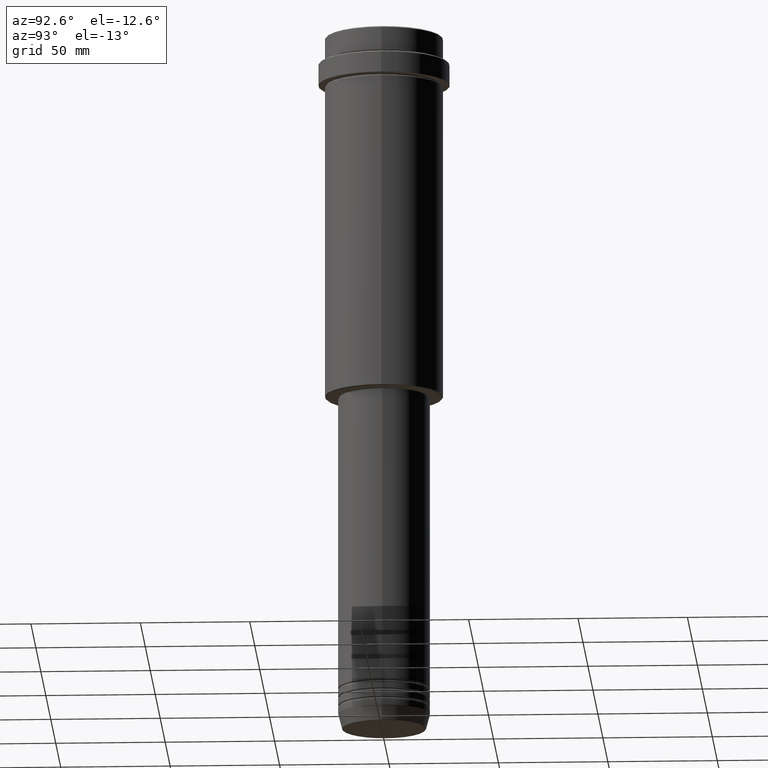
[diagram: clean part render]
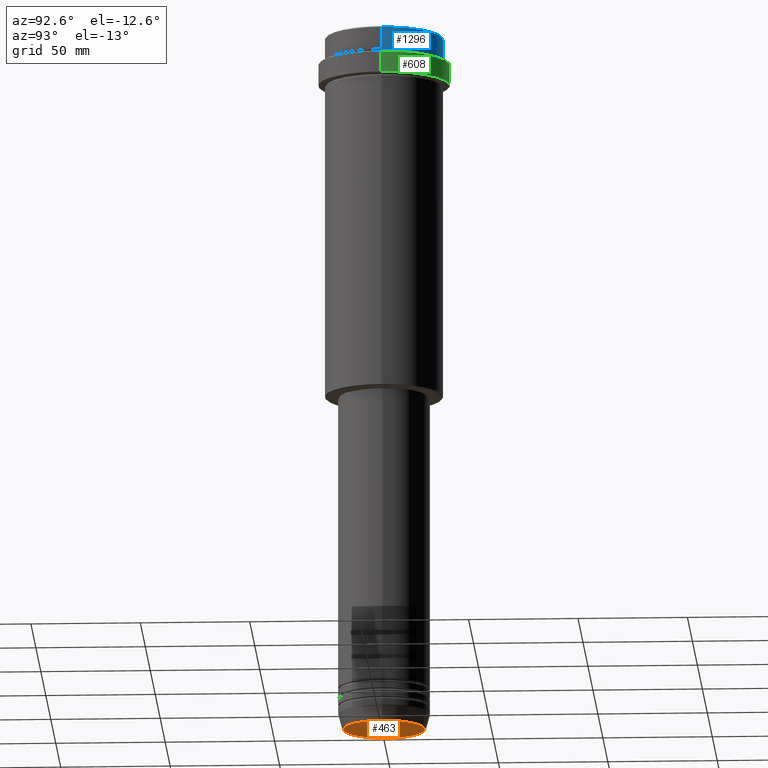
[diagram: same view with three faces highlighted in distinct colors, each labeled with its STEP entity id]
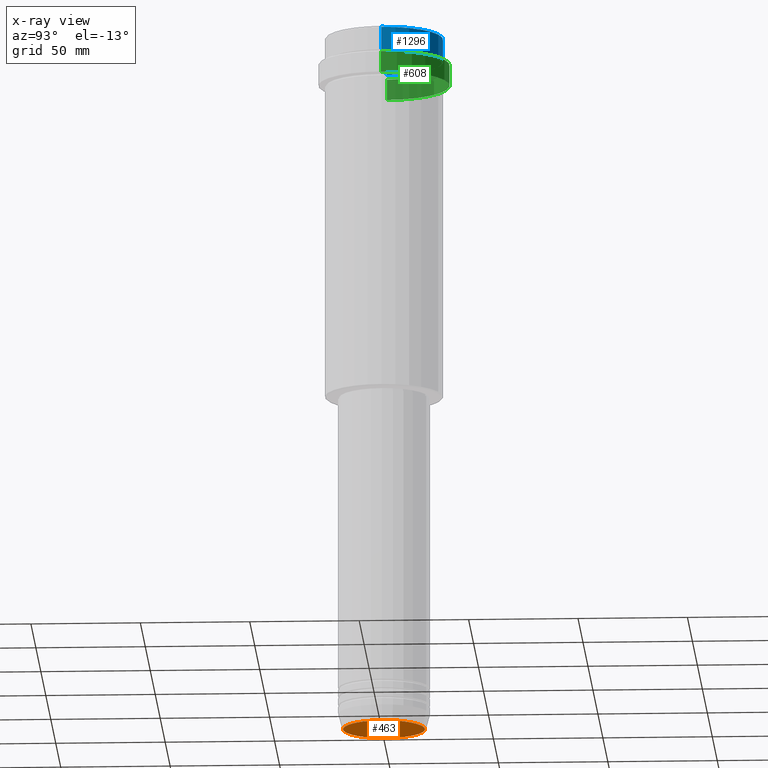
[diagram: x-ray of the same camera — body ghosted, the three highlighted faces saturated]
A machine part, auxiliary view with three faces highlighted in distinct colors.
The next image is the same camera in x-ray (body ghosted, the three faces saturated) — at least one of them is partly hidden behind the body in this view.
Their STEP definitions:

[orange] entity #463 — the highlighted planar face has unit normal (0, -0, 1).
#75 = CARTESIAN_POINT ( 'NONE',  ( 0.000000000000000000, 0.000000000000000000, -323.0000000000000000 ) ) ;
#242 = DIRECTION ( 'NONE',  ( 1.000000000000000000, 0.000000000000000000, 0.000000000000000000 ) ) ;
#283 = ORIENTED_EDGE ( 'NONE', *, *, #847, .T. ) ;
#311 = CARTESIAN_POINT ( 'NONE',  ( 0.000000000000000000, 0.000000000000000000, -323.0000000000000000 ) ) ;
#362 = ORIENTED_EDGE ( 'NONE', *, *, #687, .T. ) ;
#409 = CIRCLE ( 'NONE', #957, 18.74069215899265473 ) ;
#423 = CARTESIAN_POINT ( 'NONE',  ( 18.74069215899265473, 0.000000000000000000, -323.0000000000000000 ) ) ;
#463 = ADVANCED_FACE ( 'NONE', ( #1071 ), #748, .F. ) ;
#465 = DIRECTION ( 'NONE',  ( 0.000000000000000000, -0.000000000000000000, 1.000000000000000000 ) ) ;
#594 = CARTESIAN_POINT ( 'NONE',  ( -18.74069215899265473, 2.324645815916091924E-15, -323.0000000000000000 ) ) ;
#678 = CIRCLE ( 'NONE', #755, 18.74069215899265473 ) ;
#687 = EDGE_CURVE ( 'NONE', #997, #1125, #409, .T. ) ;
#740 = DIRECTION ( 'NONE',  ( 1.000000000000000000, 0.000000000000000000, 0.000000000000000000 ) ) ;
#748 = PLANE ( 'NONE',  #1161 ) ;
#755 = AXIS2_PLACEMENT_3D ( 'NONE', #1256, #1263, #740 ) ;
#847 = EDGE_CURVE ( 'NONE', #1125, #997, #678, .T. ) ;
#911 = EDGE_LOOP ( 'NONE', ( #362, #283 ) ) ;
#957 = AXIS2_PLACEMENT_3D ( 'NONE', #75, #1144, #1348 ) ;
#997 = VERTEX_POINT ( 'NONE', #423 ) ;
#1071 = FACE_OUTER_BOUND ( 'NONE', #911, .T. ) ;
#1125 = VERTEX_POINT ( 'NONE', #594 ) ;
#1144 = DIRECTION ( 'NONE',  ( 0.000000000000000000, 0.000000000000000000, -1.000000000000000000 ) ) ;
#1161 = AXIS2_PLACEMENT_3D ( 'NONE', #311, #465, #242 ) ;
#1256 = CARTESIAN_POINT ( 'NONE',  ( 0.000000000000000000, 0.000000000000000000, -323.0000000000000000 ) ) ;
#1263 = DIRECTION ( 'NONE',  ( 0.000000000000000000, 0.000000000000000000, -1.000000000000000000 ) ) ;
#1348 = DIRECTION ( 'NONE',  ( 1.000000000000000000, 0.000000000000000000, 0.000000000000000000 ) ) ;

[blue] entity #1296 — the highlighted cylindrical surface (partial cylindrical patch) has radius 27 mm, axis along (-0, -0, 1).
#11 = AXIS2_PLACEMENT_3D ( 'NONE', #1087, #1188, #1304 ) ;
#29 = CYLINDRICAL_SURFACE ( 'NONE', #837, 26.99999999999999645 ) ;
#56 = CARTESIAN_POINT ( 'NONE',  ( 0.000000000000000000, 0.000000000000000000, -0.5000000000000038858 ) ) ;
#130 = CIRCLE ( 'NONE', #239, 26.99999999999999645 ) ;
#148 = DIRECTION ( 'NONE',  ( 1.000000000000000000, 0.000000000000000000, 0.000000000000000000 ) ) ;
#233 = CARTESIAN_POINT ( 'NONE',  ( -26.99999999999999645, 3.306546357697853339E-15, -11.00000000000000178 ) ) ;
#239 = AXIS2_PLACEMENT_3D ( 'NONE', #56, #735, #494 ) ;
#246 = VERTEX_POINT ( 'NONE', #293 ) ;
#249 = FACE_OUTER_BOUND ( 'NONE', #1113, .T. ) ;
#260 = EDGE_CURVE ( 'NONE', #843, #816, #342, .T. ) ;
#293 = CARTESIAN_POINT ( 'NONE',  ( 26.99999999999999645, 0.000000000000000000, -11.00000000000000178 ) ) ;
#339 = EDGE_CURVE ( 'NONE', #246, #405, #978, .T. ) ;
#341 = EDGE_CURVE ( 'NONE', #246, #843, #928, .T. ) ;
#342 = LINE ( 'NONE', #451, #407 ) ;
#405 = VERTEX_POINT ( 'NONE', #818 ) ;
#407 = VECTOR ( 'NONE', #1218, 1000.000000000000000 ) ;
#427 = CARTESIAN_POINT ( 'NONE',  ( 26.99999999999999645, 0.000000000000000000, 0.000000000000000000 ) ) ;
#441 = ORIENTED_EDGE ( 'NONE', *, *, #1084, .T. ) ;
#451 = CARTESIAN_POINT ( 'NONE',  ( -26.99999999999999645, 3.306546357697853339E-15, 0.000000000000000000 ) ) ;
#494 = DIRECTION ( 'NONE',  ( 1.000000000000000000, 0.000000000000000000, 0.000000000000000000 ) ) ;
#589 = ORIENTED_EDGE ( 'NONE', *, *, #339, .F. ) ;
#735 = DIRECTION ( 'NONE',  ( 0.000000000000000000, 0.000000000000000000, -1.000000000000000000 ) ) ;
#816 = VERTEX_POINT ( 'NONE', #1122 ) ;
#818 = CARTESIAN_POINT ( 'NONE',  ( 26.99999999999999645, 0.000000000000000000, -0.5000000000000038858 ) ) ;
#837 = AXIS2_PLACEMENT_3D ( 'NONE', #1127, #1251, #148 ) ;
#843 = VERTEX_POINT ( 'NONE', #233 ) ;
#867 = DIRECTION ( 'NONE',  ( -0.000000000000000000, -0.000000000000000000, 1.000000000000000000 ) ) ;
#928 = CIRCLE ( 'NONE', #11, 26.99999999999999645 ) ;
#978 = LINE ( 'NONE', #427, #1383 ) ;
#1036 = ORIENTED_EDGE ( 'NONE', *, *, #260, .T. ) ;
#1084 = EDGE_CURVE ( 'NONE', #816, #405, #130, .T. ) ;
#1087 = CARTESIAN_POINT ( 'NONE',  ( 0.000000000000000000, 0.000000000000000000, -11.00000000000000178 ) ) ;
#1113 = EDGE_LOOP ( 'NONE', ( #1148, #1036, #441, #589 ) ) ;
#1122 = CARTESIAN_POINT ( 'NONE',  ( -26.99999999999999645, 3.306546357697853339E-15, -0.5000000000000038858 ) ) ;
#1127 = CARTESIAN_POINT ( 'NONE',  ( 0.000000000000000000, 0.000000000000000000, 0.000000000000000000 ) ) ;
#1148 = ORIENTED_EDGE ( 'NONE', *, *, #341, .T. ) ;
#1188 = DIRECTION ( 'NONE',  ( -0.000000000000000000, -0.000000000000000000, 1.000000000000000000 ) ) ;
#1218 = DIRECTION ( 'NONE',  ( -0.000000000000000000, -0.000000000000000000, 1.000000000000000000 ) ) ;
#1251 = DIRECTION ( 'NONE',  ( -0.000000000000000000, -0.000000000000000000, 1.000000000000000000 ) ) ;
#1296 = ADVANCED_FACE ( 'NONE', ( #249 ), #29, .T. ) ;
#1304 = DIRECTION ( 'NONE',  ( 1.000000000000000000, 0.000000000000000000, 0.000000000000000000 ) ) ;
#1383 = VECTOR ( 'NONE', #867, 1000.000000000000000 ) ;

[green] entity #608 — the highlighted cylindrical surface (partial cylindrical patch) has radius 30 mm, axis along (-0, -0, 1).
#95 = EDGE_CURVE ( 'NONE', #995, #1358, #471, .T. ) ;
#116 = DIRECTION ( 'NONE',  ( -0.000000000000000000, -0.000000000000000000, 1.000000000000000000 ) ) ;
#147 = DIRECTION ( 'NONE',  ( 1.000000000000000000, 0.000000000000000000, 0.000000000000000000 ) ) ;
#232 = ORIENTED_EDGE ( 'NONE', *, *, #1149, .T. ) ;
#285 = CARTESIAN_POINT ( 'NONE',  ( 0.000000000000000000, 0.000000000000000000, -12.49999999999998224 ) ) ;
#357 = AXIS2_PLACEMENT_3D ( 'NONE', #285, #795, #147 ) ;
#471 = CIRCLE ( 'NONE', #1270, 29.99999999999999645 ) ;
#485 = ORIENTED_EDGE ( 'NONE', *, *, #556, .T. ) ;
#509 = DIRECTION ( 'NONE',  ( -0.000000000000000000, -0.000000000000000000, 1.000000000000000000 ) ) ;
#541 = CARTESIAN_POINT ( 'NONE',  ( -29.99999999999999645, 3.673940397442058389E-15, -22.00000000000000355 ) ) ;
#556 = EDGE_CURVE ( 'NONE', #1358, #800, #1305, .T. ) ;
#568 = DIRECTION ( 'NONE',  ( -0.000000000000000000, -0.000000000000000000, 1.000000000000000000 ) ) ;
#588 = VECTOR ( 'NONE', #1016, 1000.000000000000000 ) ;
#608 = ADVANCED_FACE ( 'NONE', ( #972 ), #762, .T. ) ;
#612 = CARTESIAN_POINT ( 'NONE',  ( 0.000000000000000000, 0.000000000000000000, -22.00000000000000355 ) ) ;
#647 = CARTESIAN_POINT ( 'NONE',  ( 0.000000000000000000, 0.000000000000000000, 0.000000000000000000 ) ) ;
#677 = AXIS2_PLACEMENT_3D ( 'NONE', #647, #116, #1298 ) ;
#714 = ORIENTED_EDGE ( 'NONE', *, *, #1101, .F. ) ;
#724 = CARTESIAN_POINT ( 'NONE',  ( 29.99999999999999645, 0.000000000000000000, -22.00000000000000355 ) ) ;
#762 = CYLINDRICAL_SURFACE ( 'NONE', #677, 30.00000000000000000 ) ;
#795 = DIRECTION ( 'NONE',  ( 0.000000000000000000, 0.000000000000000000, -1.000000000000000000 ) ) ;
#800 = VERTEX_POINT ( 'NONE', #1231 ) ;
#872 = VERTEX_POINT ( 'NONE', #1176 ) ;
#882 = CIRCLE ( 'NONE', #357, 30.00000000000000000 ) ;
#892 = CARTESIAN_POINT ( 'NONE',  ( -30.00000000000000000, 3.673940397442059178E-15, 0.000000000000000000 ) ) ;
#914 = LINE ( 'NONE', #1018, #982 ) ;
#941 = DIRECTION ( 'NONE',  ( 1.000000000000000000, 0.000000000000000000, 0.000000000000000000 ) ) ;
#972 = FACE_OUTER_BOUND ( 'NONE', #1006, .T. ) ;
#982 = VECTOR ( 'NONE', #568, 1000.000000000000000 ) ;
#995 = VERTEX_POINT ( 'NONE', #724 ) ;
#1006 = EDGE_LOOP ( 'NONE', ( #1330, #485, #232, #714 ) ) ;
#1016 = DIRECTION ( 'NONE',  ( -0.000000000000000000, -0.000000000000000000, 1.000000000000000000 ) ) ;
#1018 = CARTESIAN_POINT ( 'NONE',  ( 30.00000000000000000, 0.000000000000000000, 0.000000000000000000 ) ) ;
#1101 = EDGE_CURVE ( 'NONE', #995, #872, #914, .T. ) ;
#1149 = EDGE_CURVE ( 'NONE', #800, #872, #882, .T. ) ;
#1176 = CARTESIAN_POINT ( 'NONE',  ( 30.00000000000000000, 0.000000000000000000, -12.49999999999998224 ) ) ;
#1231 = CARTESIAN_POINT ( 'NONE',  ( -30.00000000000000000, 3.673940397442059178E-15, -12.49999999999998224 ) ) ;
#1270 = AXIS2_PLACEMENT_3D ( 'NONE', #612, #509, #941 ) ;
#1298 = DIRECTION ( 'NONE',  ( 1.000000000000000000, 0.000000000000000000, 0.000000000000000000 ) ) ;
#1305 = LINE ( 'NONE', #892, #588 ) ;
#1330 = ORIENTED_EDGE ( 'NONE', *, *, #95, .T. ) ;
#1358 = VERTEX_POINT ( 'NONE', #541 ) ;